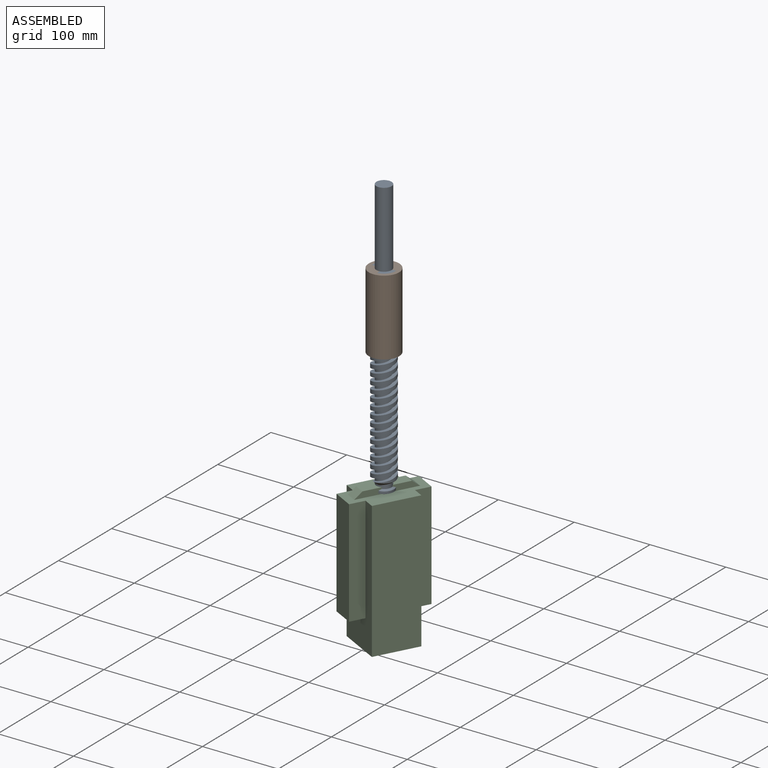
[diagram: assembled view]
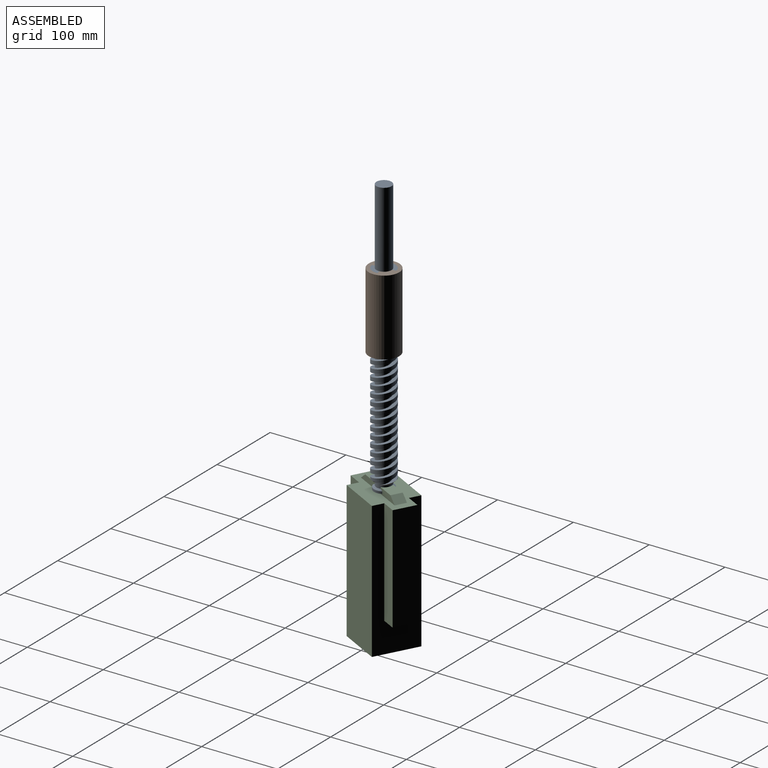
[diagram: assembled view, second angle]
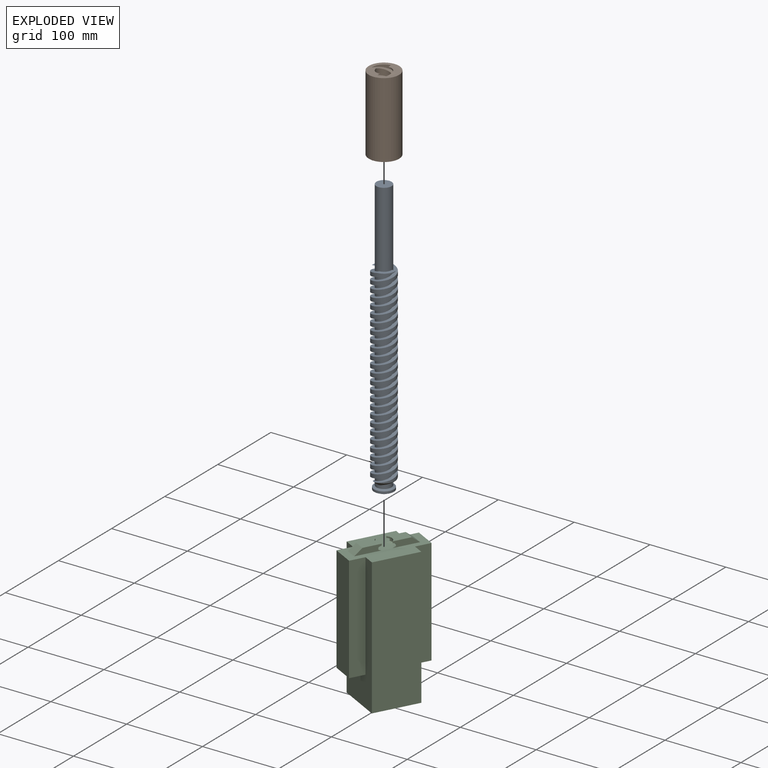
[diagram: exploded view]
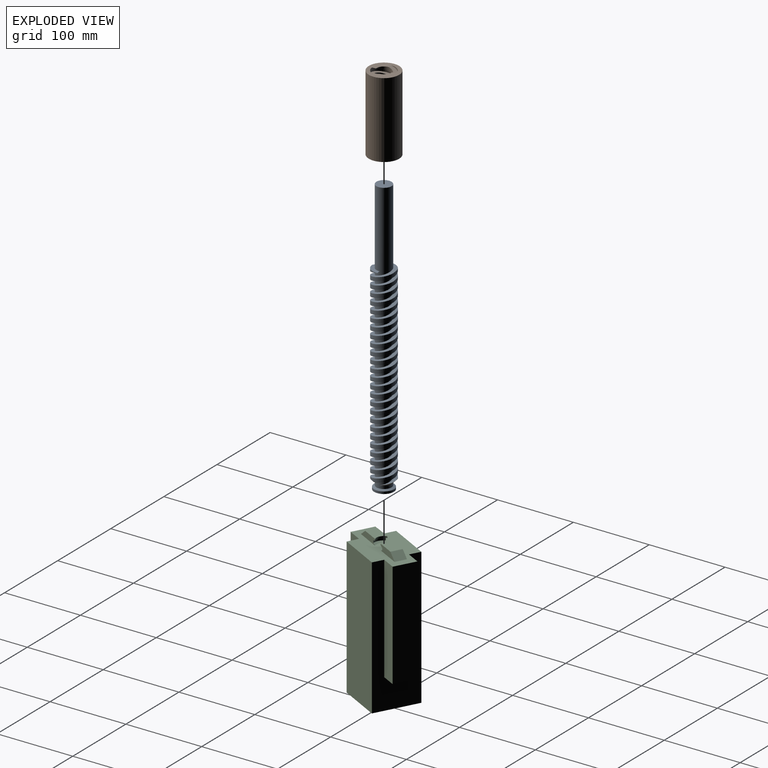
[diagram: exploded view, second angle]
ASSEMBLY  parts=3 mates=2
PART A: 40 faces, bbox 30x31.5x365 mm
  f0: cylinder r=10mm len=120mm, axis (0,0,-1), area 6675.9mm2, adj f13,f14,f25,f26,f28,f29,f31,f32
  f1: cylinder r=10mm len=24mm, axis (0,0,-1), area 644mm2, adj f2,f24,f25,f26,f28,f29,f34,f35
  f2: cylinder r=10mm len=25mm, axis (0,0,-1), area 314.2mm2, adj f1,f3,f25,f29
  f3: cylinder r=10mm len=25mm, axis (0,0,-1), area 314.2mm2, adj f2,f4,f25,f29
  f4: cylinder r=10mm len=25mm, axis (0,0,-1), area 314.2mm2, adj f3,f5,f25,f29
  f5: cylinder r=10mm len=25mm, axis (0,0,-1), area 314.1mm2, adj f4,f6,f25,f29
  f6: cylinder r=10mm len=25mm, axis (0,0,-1), area 314.1mm2, adj f5,f7,f25,f29
  f7: cylinder r=10mm len=25mm, axis (0,0,-1), area 314.1mm2, adj f6,f8,f25,f29
  f8: cylinder r=10mm len=25mm, axis (0,0,-1), area 314mm2, adj f7,f9,f25,f29
  f9: cylinder r=10mm len=25mm, axis (0,0,-1), area 314.1mm2, adj f8,f10,f25,f29
  f10: cylinder r=10mm len=25mm, axis (0,0,-1), area 314.1mm2, adj f9,f11,f25,f29
  f11: cylinder r=10mm len=25mm, axis (0,0,-1), area 314.1mm2, adj f10,f12,f25,f29
  f12: cylinder r=10mm len=25mm, axis (0,0,-1), area 314.2mm2, adj f11,f13,f25,f29
  f13: cylinder r=10mm len=25mm, axis (0,0,-1), area 314.2mm2, adj f0,f12,f25,f29
  f14: cylinder r=10mm len=25mm, axis (0,0,-1), area 314.2mm2, adj f0,f15,f26,f28
  f15: cylinder r=10mm len=25mm, axis (0,0,-1), area 314.2mm2, adj f14,f16,f26,f28
  f16: cylinder r=10mm len=25mm, axis (0,0,-1), area 314.2mm2, adj f15,f17,f26,f28
  f17: cylinder r=10mm len=25mm, axis (0,0,-1), area 314.2mm2, adj f16,f18,f26,f28
  f18: cylinder r=10mm len=25mm, axis (0,0,-1), area 314.3mm2, adj f17,f19,f26,f28
  f19: cylinder r=10mm len=25mm, axis (0,0,-1), area 314.3mm2, adj f18,f20,f26,f28
  f20: cylinder r=10mm len=25mm, axis (0,0,-1), area 314.2mm2, adj f19,f21,f26,f28
  f21: cylinder r=10mm len=25mm, axis (0,0,-1), area 314.2mm2, adj f20,f22,f26,f28
  f22: cylinder r=10mm len=25mm, axis (0,0,-1), area 314.2mm2, adj f21,f23,f26,f28
  f23: cylinder r=10mm len=25mm, axis (0,0,-1), area 314.2mm2, adj f22,f24,f26,f28
  f24: cylinder r=10mm len=25mm, axis (0,0,-1), area 314.1mm2, adj f1,f23,f26,f28
  f25: bspline ~258x31.54mm, area 5113.2mm2, adj f0,f1,f2,f3,f4,f5,f6,f7
  f26: bspline ~256x31.54mm, area 5111.8mm2, adj f0,f1,f14,f15,f16,f17,f18,f19
  f27: cylinder r=15mm len=250mm, axis (0,0,1), area 6810.5mm2, adj f25,f26,f32,f35
  f28: bspline ~258x31.54mm, area 5113.2mm2, adj f0,f1,f14,f15,f16,f17,f18,f19
  f29: bspline ~256x31.54mm, area 5111.8mm2, adj f0,f1,f2,f3,f4,f5,f6,f7
  f30: cylinder r=15mm len=250mm, axis (0,0,1), area 6810.5mm2, adj f28,f29,f33,f34
  f31: plane 20x20mm, normal (0,0,1), area 314.2mm2, adj f0
  f32: plane 15x15mm, normal (0,0,1), area 98.2mm2, adj f0,f25,f26,f27
  f33: plane 15x15mm, normal (0,0,1), area 98.2mm2, adj f0,f28,f29,f30
  f34: cone r=10mm half-angle=45deg, axis (0,0,1), area 138.8mm2, adj f1,f28,f29,f30
  f35: cone r=10mm half-angle=45deg, axis (0,0,1), area 138.8mm2, adj f1,f25,f26,f27
  f36: cone r=13mm half-angle=63.4deg, axis (0,0,-1), area 242.4mm2, adj f1,f37
  f37: cylinder r=13mm len=26mm, axis (0,0,1), area 245mm2, adj f36,f38
  f38: cone r=10mm half-angle=63.4deg, axis (0,0,1), area 242.4mm2, adj f37,f39
  f39: plane 20x20mm, normal (0,0,-1), area 314.2mm2, adj f38
PART B: 11 faces, bbox 40x40x103 mm
  f0: plane 40x40mm, normal (0,0,-1), area 746.1mm2, adj f2,f3,f4,f5,f6,f7,f8,f9
  f1: plane 40x40mm, normal (0,0,1), area 746.1mm2, adj f2,f3,f4,f5,f6,f7,f8,f9
  f2: cylinder r=20mm len=100mm, axis (0,0,1), area 12566.4mm2, adj f0,f1
  f3: cylinder r=15mm len=100mm, axis (0,0,1), area 2271.3mm2, adj f0,f1,f4,f5
  f4: bspline ~102x31.54mm, area 2027.8mm2, adj f0,f1,f3,f10
  f5: bspline ~102x31.54mm, area 2026.4mm2, adj f0,f1,f3,f9
  f6: cylinder r=15mm len=100mm, axis (0,0,1), area 2271.3mm2, adj f0,f1,f7,f8
  f7: bspline ~102x31.54mm, area 2027.8mm2, adj f0,f1,f6,f9
  f8: bspline ~102x31.54mm, area 2026.4mm2, adj f0,f1,f6,f10
  f9: cylinder r=10mm len=100mm, axis (0,0,-1), area 1514.2mm2, adj f0,f1,f5,f7
  f10: cylinder r=10mm len=100mm, axis (0,0,-1), area 1514.2mm2, adj f0,f1,f4,f8
PART C: 30 faces, bbox 100x60x188 mm
  f0: plane 180x60mm, normal (-1,0,0), area 6600mm2, adj f10,f11,f12,f13,f26,f27,f29
  f1: plane 180x60mm, normal (1,0,0), area 6600mm2, adj f10,f11,f12,f13,f22,f24,f25
  f2: plane 23.39x15mm, normal (0,0,1), area 315.6mm2, adj f3,f4,f5,f9
  f3: plane 33.39x8mm, normal (0,-1,0), area 208.9mm2, adj f2,f5,f6,f7,f8,f9,f10
  f4: plane 33.39x8mm, normal (0,1,0), area 208.9mm2, adj f2,f5,f6,f7,f8,f9,f10
  f5: plane 15x10mm, normal (0.62,0,0.78), area 192.1mm2, adj f2,f3,f4,f10
  f6: cone r=10mm half-angle=63.4deg, axis (0,0,1), area 55mm2, adj f3,f4,f7,f10
  f7: cylinder r=13mm len=15mm, axis (0,0,1), area 48mm2, adj f3,f4,f6,f8
  f8: cone r=13mm half-angle=63.4deg, axis (0,0,-1), area 55mm2, adj f3,f4,f7,f9
  f9: cylinder r=10mm len=15mm, axis (0,0,1), area 33.9mm2, adj f2,f3,f4,f8
  f10: plane 100x60mm, normal (0,0,1), area 3868.8mm2, adj f0,f1,f3,f4,f5,f6,f11,f12
  f11: plane 180x60mm, normal (0,-1,0), area 10800mm2, adj f0,f1,f10,f13
  f12: plane 180x60mm, normal (0,1,0), area 10800mm2, adj f0,f1,f10,f13
  f13: plane 60x60mm, normal (0,0,-1), area 3600mm2, adj f0,f1,f11,f12
  f14: plane 23.39x15mm, normal (0,0,1), area 315.6mm2, adj f15,f16,f17,f21
  f15: plane 33.39x8mm, normal (0,-1,0), area 208.9mm2, adj f10,f14,f17,f18,f19,f20,f21
  f16: plane 33.39x8mm, normal (0,1,0), area 208.9mm2, adj f10,f14,f17,f18,f19,f20,f21
  f17: plane 15x10mm, normal (-0.62,0,0.78), area 192.1mm2, adj f10,f14,f15,f16
  f18: cone r=10mm half-angle=63.4deg, axis (0,0,1), area 55mm2, adj f10,f15,f16,f19
  f19: cylinder r=13mm len=15mm, axis (0,0,1), area 48mm2, adj f15,f16,f18,f20
  f20: cone r=13mm half-angle=63.4deg, axis (0,0,-1), area 55mm2, adj f15,f16,f19,f21
  f21: cylinder r=10mm len=15mm, axis (0,0,1), area 33.9mm2, adj f14,f15,f16,f20
  f22: plane 140x20mm, normal (0,-1,0), area 2800mm2, adj f1,f10,f23,f25
  f23: plane 140x30mm, normal (1,0,0), area 4200mm2, adj f10,f22,f24,f25
  f24: plane 140x20mm, normal (0,1,0), area 2800mm2, adj f1,f10,f23,f25
  f25: plane 30x20mm, normal (0,0,-1), area 600mm2, adj f1,f22,f23,f24
  f26: plane 140x20mm, normal (0,-1,0), area 2800mm2, adj f0,f10,f28,f29
  f27: plane 140x20mm, normal (0,1,0), area 2800mm2, adj f0,f10,f28,f29
  f28: plane 140x30mm, normal (-1,0,0), area 4200mm2, adj f10,f26,f27,f29
  f29: plane 30x20mm, normal (0,0,-1), area 600mm2, adj f0,f26,f27,f28
PLACE A rot(axis=(0,0,1),95.9deg) t=(-0.63,0,-0.33)mm
PLACE B rot(axis=(0,0,1),95.9deg) t=(-0.63,0,-230.33)mm fixed
PLACE C rot(axis=(0,0,-1),118deg) t=(-0.63,0,-0.33)mm
MATE revolute C.f6 <-> A.f0  axis (0,0,1) through (-0.63,0,-0.33)mm
MATE cylindrical B.f2 <-> A.f0  axis (0,0,1) through (-0.63,0,264.67)mm
